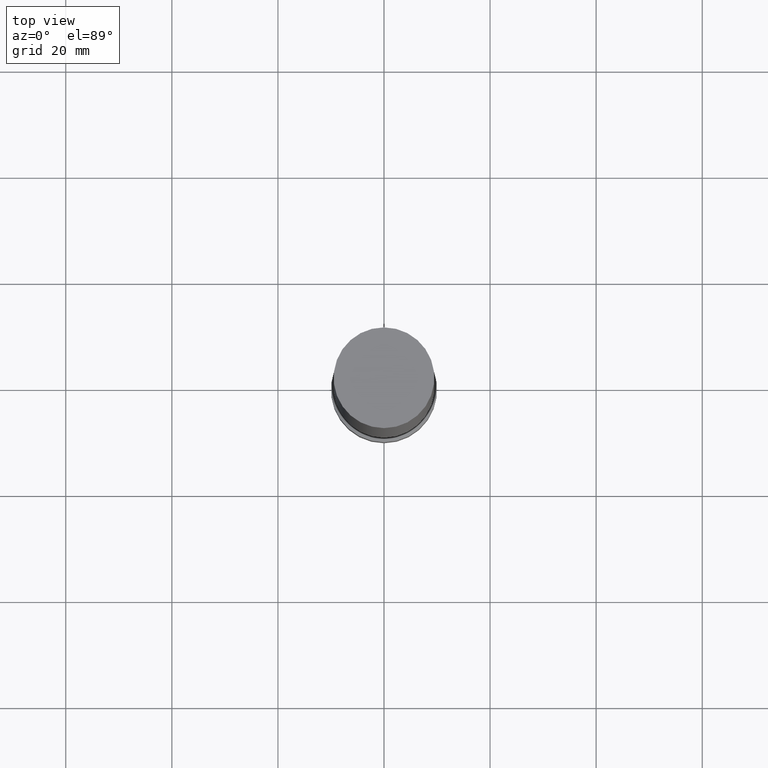
[diagram: clean part render]
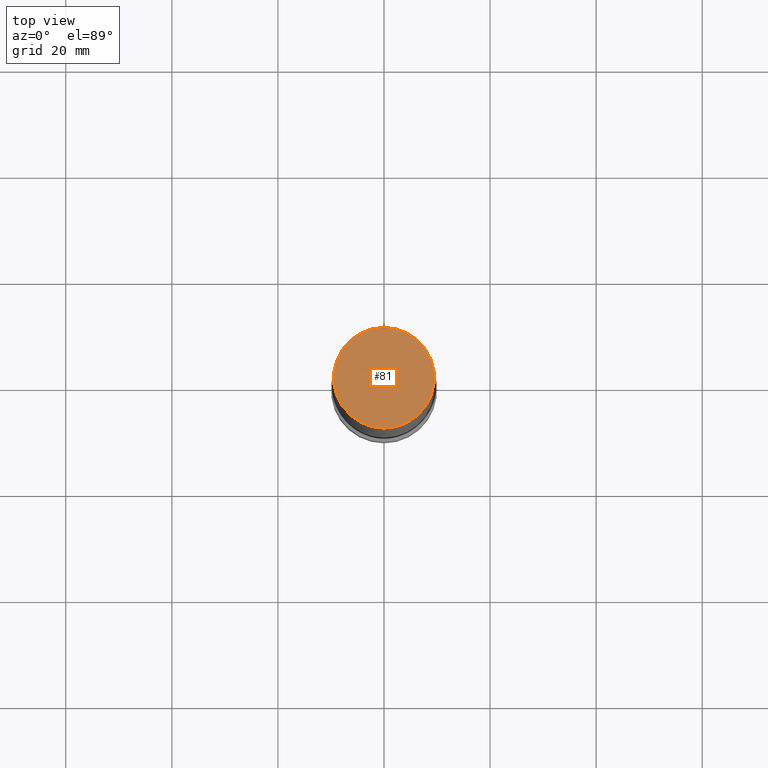
[diagram: same view with one face highlighted and labeled with its STEP entity id]
A machine part, top view. The second image highlights one B-rep face of the part: STEP entity #81.
In plain terms, the highlighted planar face has unit normal (-0, 0, 1).
Its self-contained STEP definition (entity closure, byte-faithful):
#81=ADVANCED_FACE('',(#100),#101,.T.);
#100=FACE_OUTER_BOUND('',#119,.T.);
#101=PLANE('',#120);
#119=EDGE_LOOP('',(#150));
#120=AXIS2_PLACEMENT_3D('',#151,#152,#153);
#150=ORIENTED_EDGE('',*,*,#159,.T.);
#151=CARTESIAN_POINT('',(-8.26636589424462E-015,4.74999999999981,135.0));
#152=DIRECTION('',(-6.12323399573677E-017,1.18445708697293E-014,1.0));
#153=DIRECTION('',(7.20443637413629E-031,1.0,-1.18445708697293E-014));
#159=EDGE_CURVE('',#170,#170,#171,.T.);
#170=VERTEX_POINT('',#182);
#171=CIRCLE('',#183,9.49999999999981);
#182=CARTESIAN_POINT('',(-8.26636589424462E-015,9.49999999999971,135.0));
#183=AXIS2_PLACEMENT_3D('',#199,#200,#201);
#199=CARTESIAN_POINT('',(-8.26636589424462E-015,-1.00288351667562E-013,135.0));
#200=DIRECTION('',(-6.12323399573676E-017,-7.42876679018993E-016,1.0));
#201=DIRECTION('',(-5.03152300868619E-032,1.0,7.42876679018993E-016));